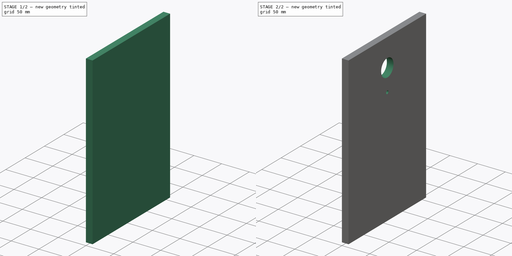
[diagram: build sequence overview — one tinted view per stage of 2, left to right]
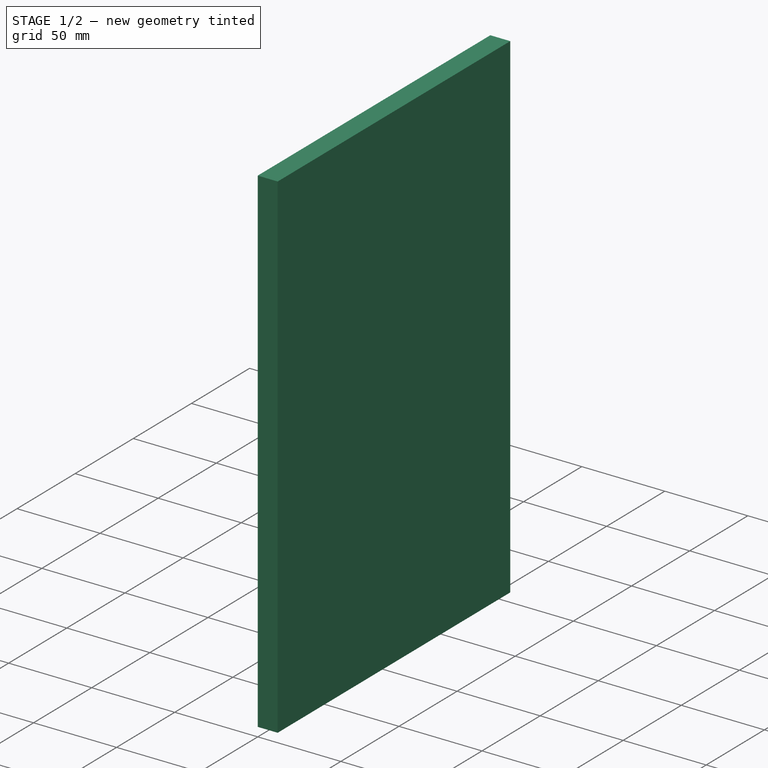
[diagram: stage 1 of 2 — iso view after this stage's code; geometry added in this stage tinted green]
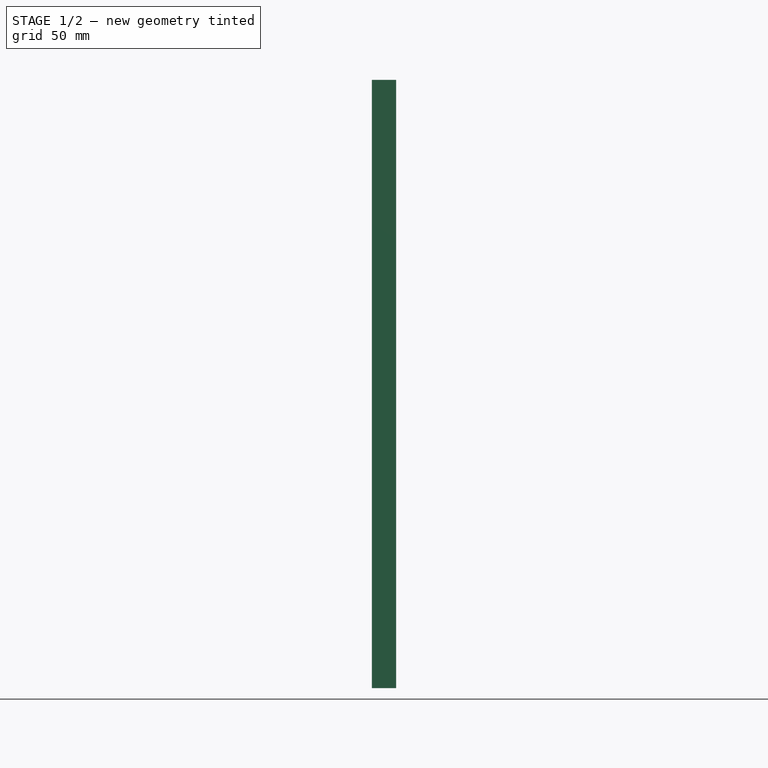
[diagram: stage 1 of 2 — front view after this stage's code; geometry added in this stage tinted green]
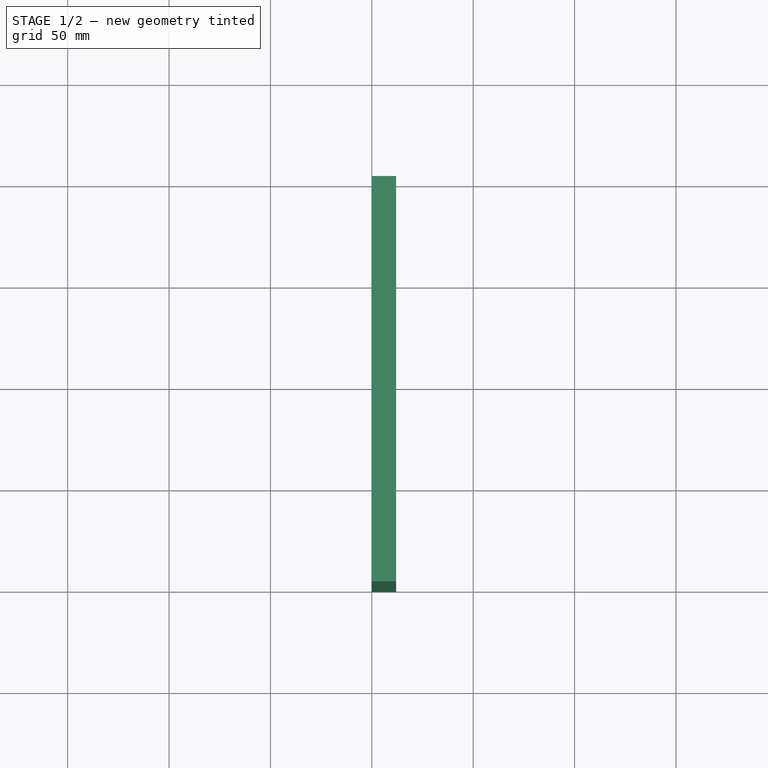
[diagram: stage 1 of 2 — top view after this stage's code; geometry added in this stage tinted green]
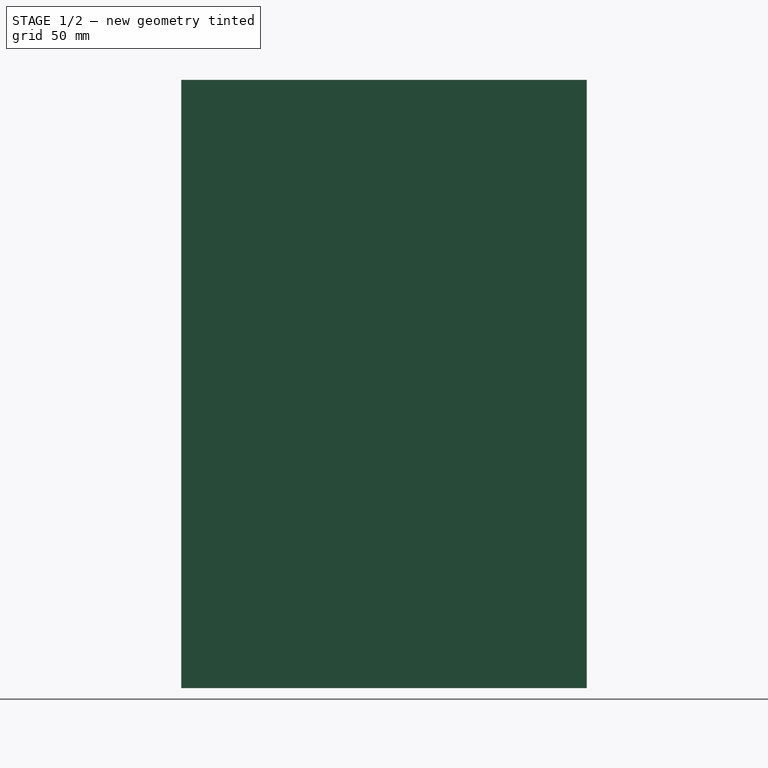
[diagram: stage 1 of 2 — right view after this stage's code; geometry added in this stage tinted green]
FCSTD DOCUMENT  (FreeCAD 0.18R14555 (Git shallow))
Label: 300_FrontPlate
License: All rights reserved
LicenseURL: http://en.wikipedia.org/wiki/All_rights_reserved
objects: Sketcher::SketchObject×2, Spreadsheet::Sheet×1, App::Part×1, PartDesign::Pad×1, PartDesign::Pocket×1, PartDesign::Body×1
note: 7 computed .brp shape members not serialized (recipe doc carries the construction recipe); baked Part::Feature solids carry a one-line shape summary decoded from their .brp

FEATURE [Spreadsheet::Sheet] Spreadsheet
  cells = B2=FRONT PLATE; B3=Z=; C3(T)=13; D3=.T; E3=Thichness; B4=Y=; C4(Width)=200; D4=.W; E4=Width; B5=X=; C5(Depth)=300; D5=.D; E5=Depth
FEATURE [App::Part] Part
  License = CC BY 3.0
  LicenseURL = http://creativecommons.org/licenses/by/3.0/
  Origin = -> Origin
FEATURE [Sketcher::SketchObject] Sketch
  MapMode = 5
  Placement = pos=(0,0,0) rot=(0.57735,0.57735,0.57735;2.0944rad)
  Support = -> [YZ_Plane001]
  expr: Constraints[9] = Spreadsheet.Depth
  expr: Constraints[10] = Spreadsheet.Width
  sketch-geometry (6):
    g0: LineSegment StartX=-100 StartY=150 StartZ=0 EndX=100 EndY=150 EndZ=0
    g1: LineSegment StartX=100 StartY=150 StartZ=0 EndX=100 EndY=-150 EndZ=0
    g2: LineSegment StartX=100 StartY=-150 StartZ=0 EndX=-100 EndY=-150 EndZ=0
    g3: LineSegment StartX=-100 StartY=-150 StartZ=0 EndX=-100 EndY=150 EndZ=0
    g4: LineSegment [constr] StartX=-100 StartY=150 StartZ=0 EndX=4.26e-14 EndY=0 EndZ=0
    g5: LineSegment [constr] StartX=0 StartY=0 StartZ=0 EndX=100 EndY=-150 EndZ=0
  constraints (16):
    c: Coincident(g0,g1)
    c: Coincident(g1,g2)
    c: Coincident(g2,g3)
    c: Coincident(g3,g0)
    c: Horizontal(g0)
    c: Horizontal(g2)
    c: Vertical(g1)
    c: Vertical(g3)
    c: Equal(g4,g5)
    c: DistanceY(g1,g1) = 300
    c: DistanceX(g2,g2) = 200
    c: Coincident(g5,g1)
    c: Coincident(g5,g-1)
    c: Coincident(g4,g-1)
    c: Coincident(g4,g0)
    c: Parallel(g5,g4)
FEATURE [PartDesign::Pad] Pad
  Length = 12
  Length2 = 100
  Placement = pos=(0,0,0) rot=(0.57735,0.57735,0.57735;2.0944rad)
  Profile = -> Sketch
  Type = 0
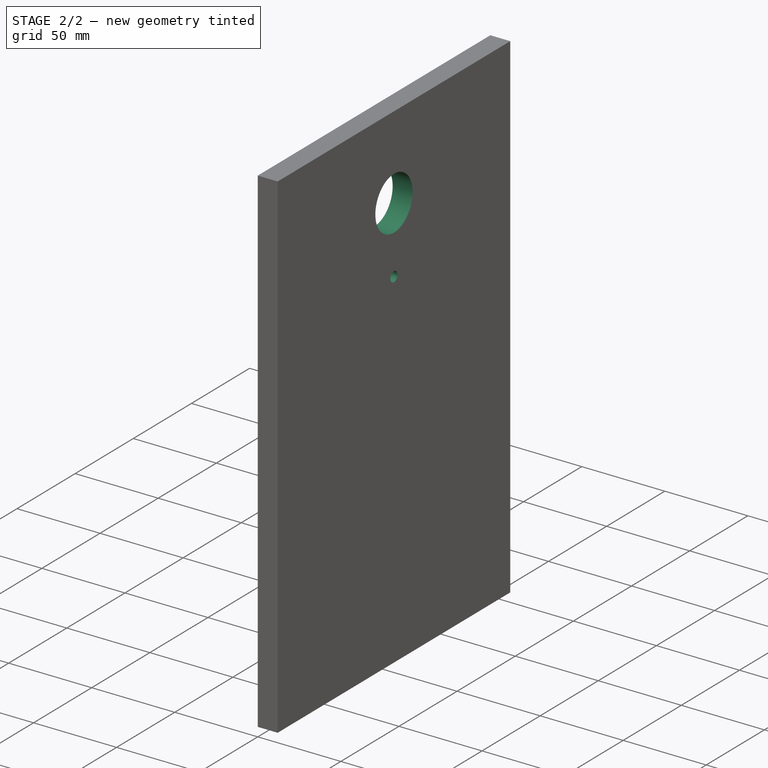
[diagram: stage 2 of 2 — iso view after this stage's code; geometry added in this stage tinted green]
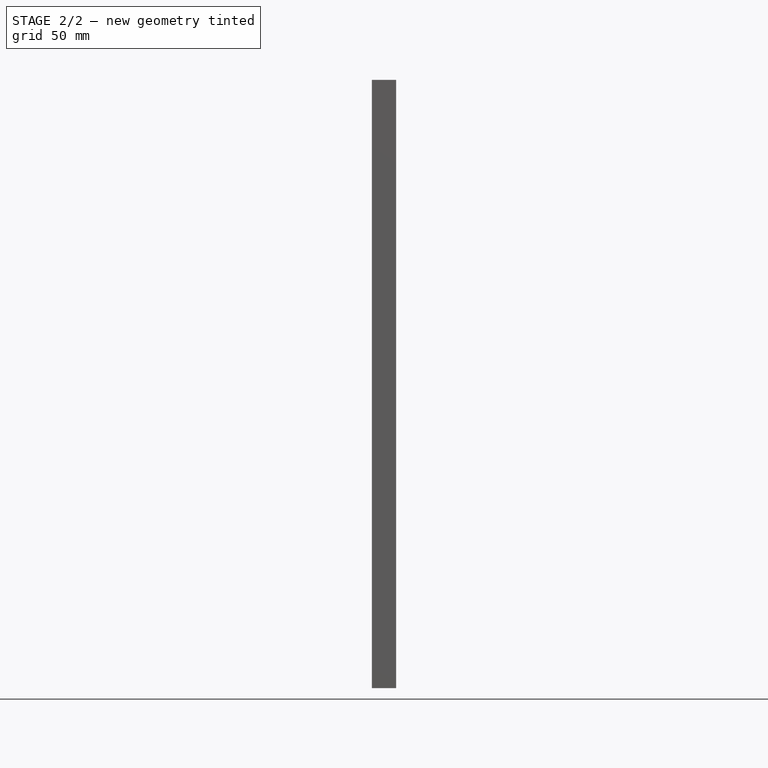
[diagram: stage 2 of 2 — front view after this stage's code; geometry added in this stage tinted green]
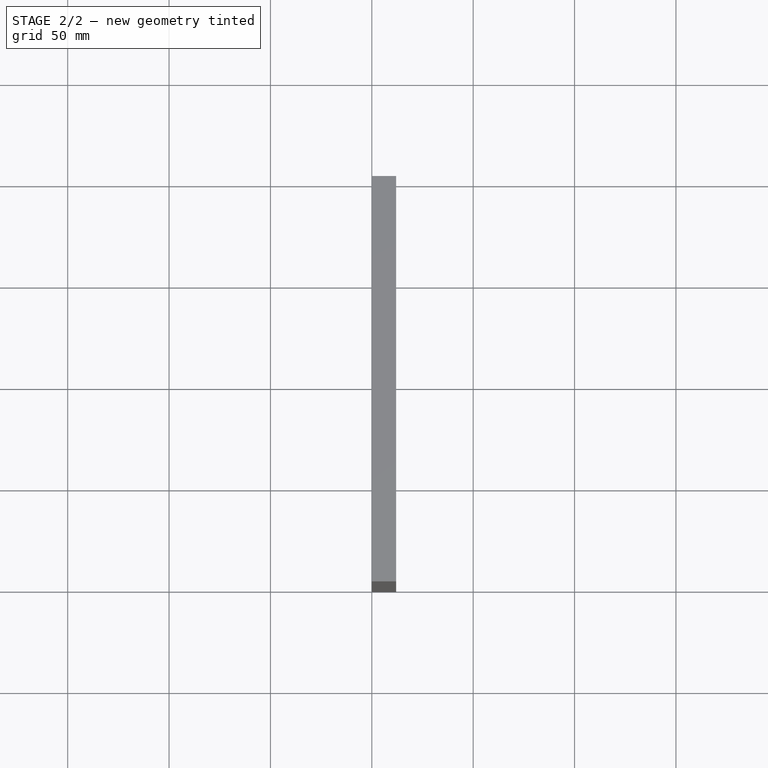
[diagram: stage 2 of 2 — top view after this stage's code; geometry added in this stage tinted green]
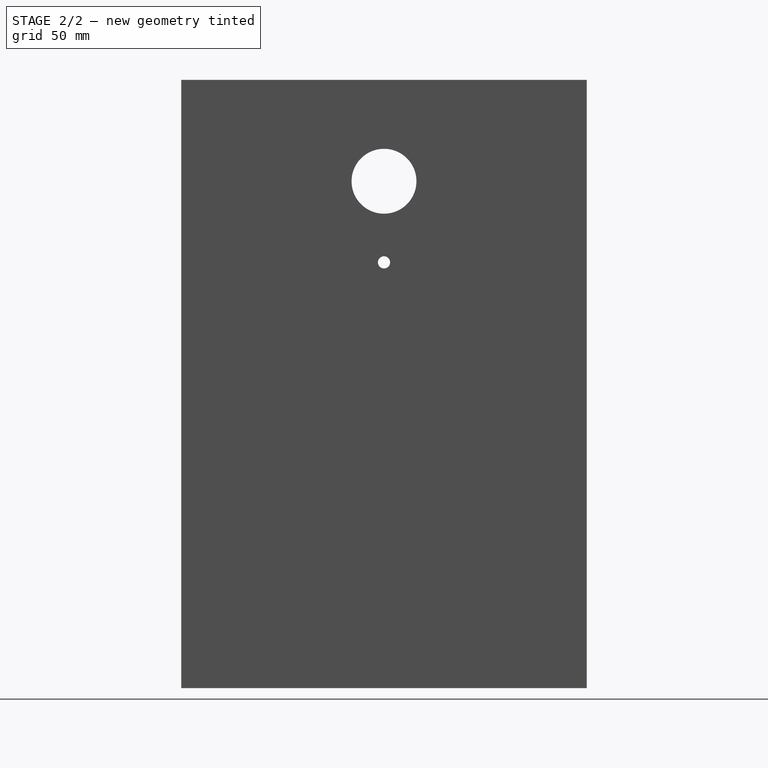
[diagram: stage 2 of 2 — right view after this stage's code; geometry added in this stage tinted green]
FEATURE [Sketcher::SketchObject] Sketch001
  ExternalGeometry = -> [Pad]
  MapMode = 5
  Placement = pos=(0,0,0) rot=(0.57735,0.57735,-0.57735;4.18879rad)
  Support = -> [Pad]
  sketch-geometry (4):
    g0: Circle CenterX=0 CenterY=-100 CenterZ=0 NormalX=0 NormalY=0 NormalZ=1 AngleXU=0 Radius=16
    g1: LineSegment [constr] StartX=0 StartY=-100 StartZ=0 EndX=0 EndY=-150 EndZ=0
    g2: Circle CenterX=0 CenterY=-60 CenterZ=0 NormalX=0 NormalY=0 NormalZ=1 AngleXU=0 Radius=3
    g3: LineSegment [constr] StartX=0 StartY=-100 StartZ=0 EndX=0 EndY=-60 EndZ=0
  constraints (11):
    c: Coincident(g1,g0)
    c: PointOnObject(g1,g-2)
    c: DistanceY(g1,g1) = -50
    c: Diameter(g0) = 32
    c: PointOnObject(g1,g-3)
    c: PointOnObject(g2,g-2)
    c: Diameter(g2) = 6
    c: Coincident(g3,g2)
    c: Coincident(g3,g0)
    c: Vertical(g3)
    c: DistanceY(g3,g3) = 40
FEATURE [PartDesign::Pocket] Pocket
  BaseFeature = -> Pad
  Length = 5
  Length2 = 100
  Placement = pos=(0,0,0) rot=(0.57735,0.57735,0.57735;2.0944rad)
  Profile = -> Sketch001
  Type = 1
FEATURE [PartDesign::Body] Body
  Group = -> [Sketch,Pad,Sketch001,Pocket]
  Origin = -> Origin001
  Tip = -> Pocket
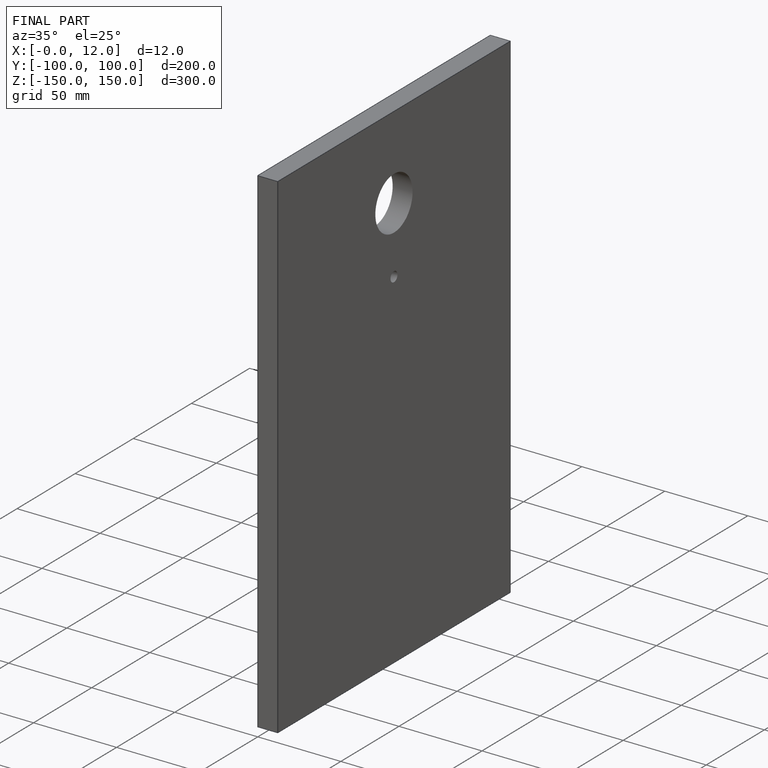
[diagram: finished part — iso view with bounding-box wireframe]
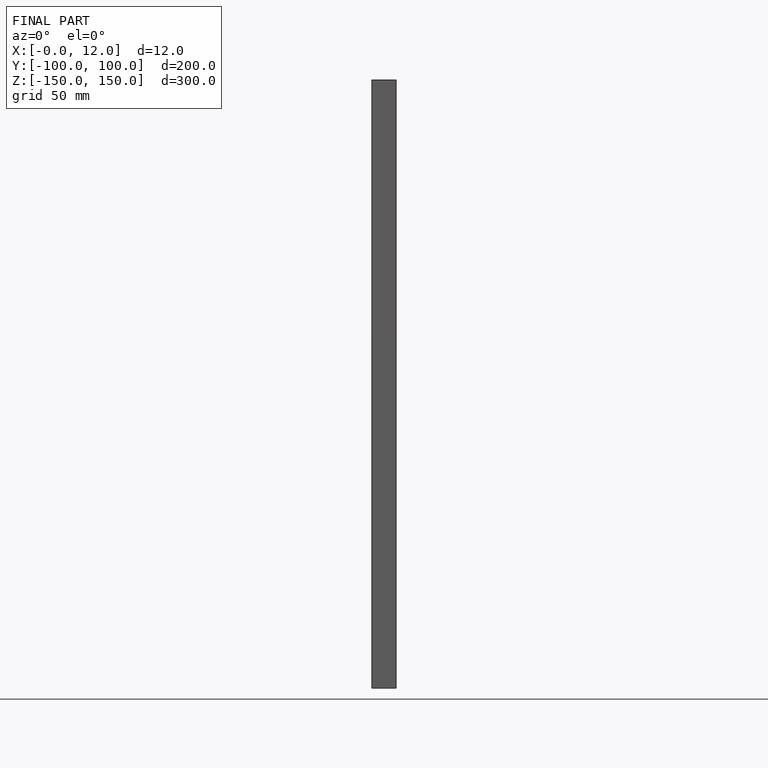
[diagram: finished part — front view with bounding-box wireframe]
